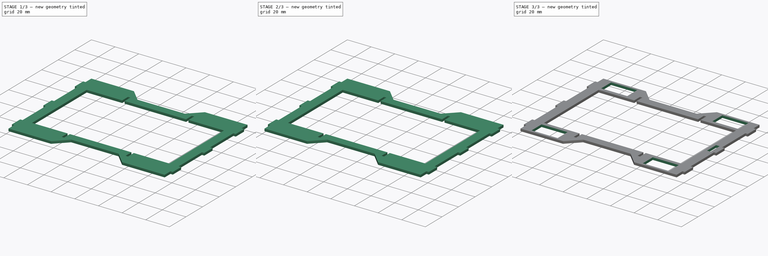
[diagram: build sequence overview — one tinted view per stage of 3, left to right]
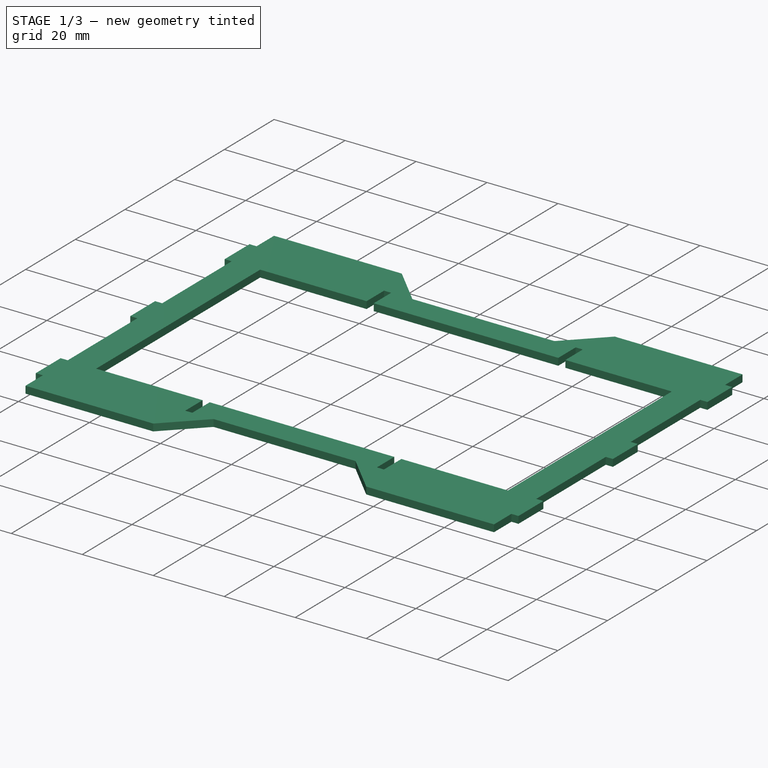
[diagram: stage 1 of 3 — iso view after this stage's code; geometry added in this stage tinted green]
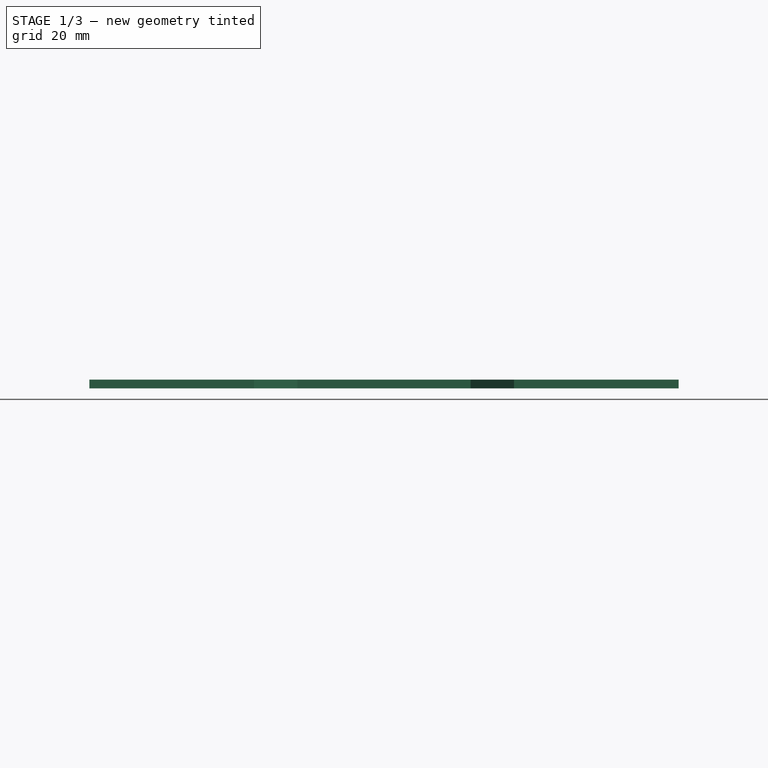
[diagram: stage 1 of 3 — front view after this stage's code; geometry added in this stage tinted green]
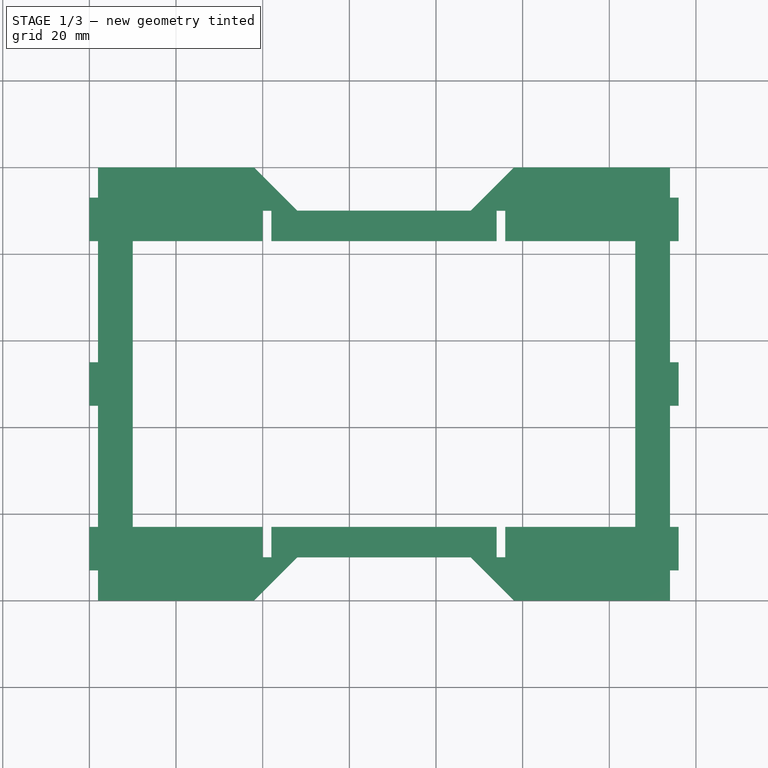
[diagram: stage 1 of 3 — top view after this stage's code; geometry added in this stage tinted green]
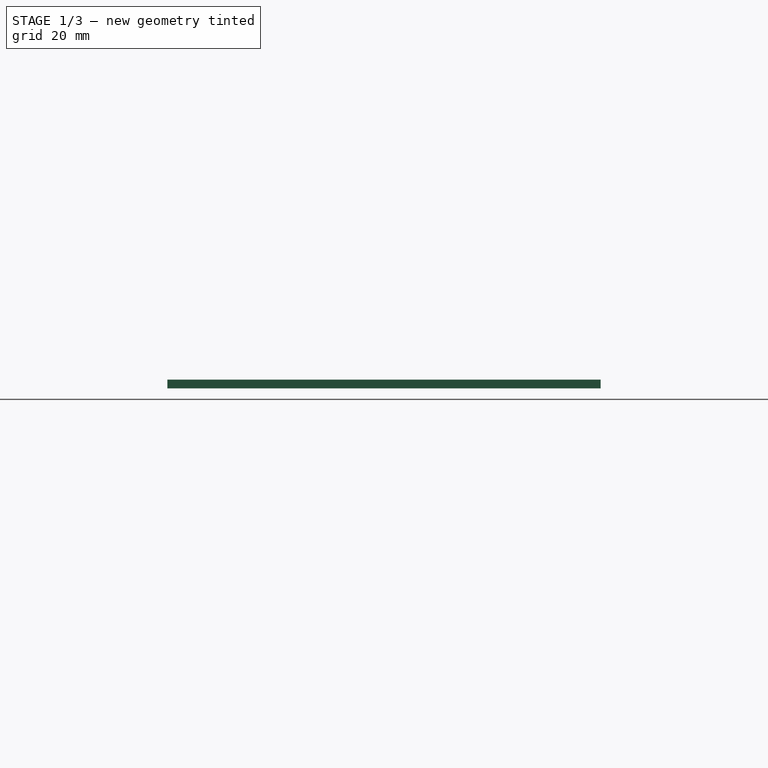
[diagram: stage 1 of 3 — right view after this stage's code; geometry added in this stage tinted green]
FCSTD DOCUMENT  (FreeCAD 0.18R16131 (Git))
Label: passerelle_11
License: All rights reserved
LicenseURL: http://en.wikipedia.org/wiki/All_rights_reserved
objects: Sketcher::SketchObject×4, PartDesign::Pocket×4, PartDesign::Pad×1, PartDesign::Body×1
note: 15 computed .brp shape members not serialized (recipe doc carries the construction recipe); baked Part::Feature solids carry a one-line shape summary decoded from their .brp

FEATURE [Sketcher::SketchObject] Sketch
  MapMode = 5
  Support = -> [XY_Plane]
  sketch-geometry (40):
    g0: LineSegment StartX=2 StartY=100 StartZ=0 EndX=38 EndY=100 EndZ=0
    g1: LineSegment StartX=38 StartY=100 StartZ=0 EndX=48 EndY=90 EndZ=0
    g2: LineSegment StartX=48 StartY=90 StartZ=0 EndX=88 EndY=90 EndZ=0
    g3: LineSegment StartX=88 StartY=90 StartZ=0 EndX=98 EndY=100 EndZ=0
    g4: LineSegment StartX=98 StartY=100 StartZ=0 EndX=134 EndY=100 EndZ=0
    g5: LineSegment StartX=134 StartY=0 StartZ=0 EndX=98 EndY=0 EndZ=0
    g6: LineSegment StartX=98 StartY=0 StartZ=0 EndX=88 EndY=10 EndZ=0
    g7: LineSegment StartX=88 StartY=10 StartZ=0 EndX=48 EndY=10 EndZ=0
    g8: LineSegment StartX=48 StartY=10 StartZ=0 EndX=38 EndY=0 EndZ=0
    g9: LineSegment StartX=38 StartY=0 StartZ=0 EndX=2 EndY=0 EndZ=0
    g10: LineSegment StartX=10 StartY=83 StartZ=0 EndX=126 EndY=83 EndZ=0
    g11: LineSegment StartX=126 StartY=83 StartZ=0 EndX=126 EndY=17 EndZ=0
    g12: LineSegment StartX=126 StartY=17 StartZ=0 EndX=10 EndY=17 EndZ=0
    g13: LineSegment StartX=10 StartY=17 StartZ=0 EndX=10 EndY=83 EndZ=0
    g14: LineSegment StartX=2 StartY=0 StartZ=0 EndX=2 EndY=7 EndZ=0
    g15: LineSegment StartX=2 StartY=7 StartZ=0 EndX=0 EndY=7 EndZ=0
    g16: LineSegment StartX=0 StartY=7 StartZ=0 EndX=0 EndY=17 EndZ=0
    g17: LineSegment StartX=0 StartY=17 StartZ=0 EndX=2 EndY=17 EndZ=0
    g18: LineSegment StartX=2 StartY=17 StartZ=0 EndX=2 EndY=45 EndZ=0
    g19: LineSegment StartX=2 StartY=45 StartZ=0 EndX=0 EndY=45 EndZ=0
    g20: LineSegment StartX=0 StartY=45 StartZ=0 EndX=0 EndY=55 EndZ=0
    g21: LineSegment StartX=0 StartY=55 StartZ=0 EndX=2 EndY=55 EndZ=0
    g22: LineSegment StartX=2 StartY=55 StartZ=0 EndX=2 EndY=83 EndZ=0
    g23: LineSegment StartX=2 StartY=83 StartZ=0 EndX=0 EndY=83 EndZ=0
    g24: LineSegment StartX=0 StartY=83 StartZ=0 EndX=0 EndY=93 EndZ=0
    g25: LineSegment StartX=0 StartY=93 StartZ=0 EndX=2 EndY=93 EndZ=0
    g26: LineSegment StartX=2 StartY=93 StartZ=0 EndX=2 EndY=100 EndZ=0
    g27: LineSegment StartX=134 StartY=93 StartZ=0 EndX=136 EndY=93 EndZ=0
    g28: LineSegment StartX=136 StartY=93 StartZ=0 EndX=136 EndY=83 EndZ=0
    g29: LineSegment StartX=136 StartY=83 StartZ=0 EndX=134 EndY=83 EndZ=0
    g30: LineSegment StartX=134 StartY=83 StartZ=0 EndX=134 EndY=55 EndZ=0
    g31: LineSegment StartX=134 StartY=55 StartZ=0 EndX=136 EndY=55 EndZ=0
    g32: LineSegment StartX=136 StartY=55 StartZ=0 EndX=136 EndY=45 EndZ=0
    g33: LineSegment StartX=136 StartY=45 StartZ=0 EndX=134 EndY=45 EndZ=0
    g34: LineSegment StartX=134 StartY=45 StartZ=0 EndX=134 EndY=17 EndZ=0
    g35: LineSegment StartX=134 StartY=17 StartZ=0 EndX=136 EndY=17 EndZ=0
    g36: LineSegment StartX=136 StartY=17 StartZ=0 EndX=136 EndY=7 EndZ=0
    g37: LineSegment StartX=136 StartY=7 StartZ=0 EndX=134 EndY=7 EndZ=0
    g38: LineSegment StartX=134 StartY=7 StartZ=0 EndX=134 EndY=0 EndZ=0
    g39: LineSegment StartX=134 StartY=100 StartZ=0 EndX=134 EndY=93 EndZ=0
  constraints (120):
    c: Coincident(g0,g1)
    c: Coincident(g1,g2)
    c: Coincident(g2,g3)
    c: Coincident(g3,g4)
    c: Coincident(g5,g6)
    c: Coincident(g6,g7)
    c: Coincident(g7,g8)
    c: Coincident(g8,g9)
    c: Horizontal(g4)
    c: Horizontal(g2)
    c: Horizontal(g7)
    c: Horizontal(g5)
    c: Horizontal(g9)
    c: Horizontal(g0)
    c: PointOnObject(g5,g-1)
    c: Equal(g7,g2)
    c: DistanceX(g9,g5) = 132
    c: DistanceX(g9,g8) = 36
    c: DistanceX(g9,g7) = 46
    c: Equal(g4,g5)
    c: Equal(g5,g9)
    c: Equal(g9,g0)
    c: Coincident(g10,g11)
    c: Coincident(g11,g12)
    c: Coincident(g12,g13)
    c: Coincident(g13,g10)
    c: Horizontal(g10)
    c: Horizontal(g12)
    c: Vertical(g11)
    c: Vertical(g13)
    c: DistanceX(g12,g12) = 116
    c: DistanceY(g11,g11) = 66
    c: DistanceX(g9,g12) = 8
    c: DistanceY(g9,g12) = 17
    c: Coincident(g14,g15)
    c: Coincident(g15,g16)
    c: Coincident(g16,g17)
    c: Coincident(g17,g18)
    c: Coincident(g18,g19)
    c: Coincident(g19,g20)
    c: Coincident(g20,g21)
    c: Coincident(g21,g22)
    c: Coincident(g22,g23)
    c: Coincident(g23,g24)
    c: Coincident(g24,g25)
    c: Coincident(g25,g26)
    c: Coincident(g27,g28)
    c: Coincident(g28,g29)
    c: Coincident(g29,g30)
    c: Coincident(g30,g31)
    c: Coincident(g31,g32)
    c: Coincident(g32,g33)
    c: Coincident(g33,g34)
    c: Coincident(g34,g35)
    c: Coincident(g35,g36)
    c: Coincident(g36,g37)
    c: Coincident(g37,g38)
    c: Coincident(g38,g5)
    c: Coincident(g0,g26)
    c: Coincident(g9,g14)
    c: Vertical(g14)
    c: Vertical(g18)
    c: Vertical(g22)
    c: Vertical(g26)
    c: Vertical(g24)
    c: Vertical(g20)
    c: Vertical(g16)
    c: Horizontal(g23)
    c: Horizontal(g25)
    c: Horizontal(g21)
    c: Horizontal(g19)
    c: Horizontal(g17)
    c: Horizontal(g15)
    c: Horizontal(g27)
    c: Horizontal(g29)
    c: Horizontal(g31)
    c: Horizontal(g33)
    c: Horizontal(g35)
    c: Horizontal(g37)
    c: Vertical(g38)
    c: Vertical(g36)
    c: Vertical(g32)
    c: Vertical(g30)
    c: Vertical(g28)
    c: Vertical(g34)
    c: Equal(g27,g29)
    c: Equal(g29,g31)
    c: Equal(g31,g33)
    c: Equal(g33,g35)
    c: Equal(g35,g37)
    c: Equal(g37,g15)
    c: Equal(g15,g17)
    c: Equal(g17,g19)
    c: Equal(g19,g21)
    c: Equal(g21,g23)
    c: Equal(g23,g25)
    c: DistanceX(g15,g14) = 2
    c: Equal(g16,g20)
    c: Equal(g20,g24)
    c: Equal(g24,g28)
    c: Equal(g28,g32)
    c: Equal(g32,g36)
    c: DistanceY(g19,g20) = 10
    c: Equal(g22,g18)
    c: Equal(g34,g30)
    c: DistanceY(g22,g22) = 28
    c: Equal(g14,g38)
    c: DistanceY(g38,g38) = 7
    c: Equal(g39,g26)
    c: Equal(g14,g26)
    c: Coincident(g39,g27)
    c: Coincident(g39,g4)
    c: Vertical(g39)
    c: PointOnObject(g15,g-2)
    c: PointOnObject(g9,g-1)
    c: Equal(g1,g3)
    c: Equal(g3,g6)
    c: Equal(g6,g8)
    c: Horizontal(g3,g0)
    c: DistanceY(g8,g7) = 10
FEATURE [PartDesign::Pad] Pad
  Length = 2
  Length2 = 100
  Offset = 2
  Profile = -> Sketch
  Type = 0
FEATURE [Sketcher::SketchObject] CopySketch002  label="sketch_support"
  MapMode = 5
  Support = -> [XY_Plane]
  sketch-geometry (16):
    g0: LineSegment StartX=40 StartY=17 StartZ=0 EndX=42 EndY=17 EndZ=0
    g1: LineSegment StartX=42 StartY=17 StartZ=0 EndX=42 EndY=10 EndZ=0
    g2: LineSegment StartX=42 StartY=10 StartZ=0 EndX=40 EndY=10 EndZ=0
    g3: LineSegment StartX=40 StartY=10 StartZ=0 EndX=40 EndY=17 EndZ=0
    g4: LineSegment StartX=96 StartY=17 StartZ=0 EndX=96 EndY=10 EndZ=0
    g5: LineSegment StartX=96 StartY=10 StartZ=0 EndX=94 EndY=10 EndZ=0
    g6: LineSegment StartX=94 StartY=10 StartZ=0 EndX=94 EndY=17 EndZ=0
    g7: LineSegment StartX=42 StartY=90 StartZ=0 EndX=40 EndY=90 EndZ=0
    g8: LineSegment StartX=40 StartY=90 StartZ=0 EndX=40 EndY=83 EndZ=0
    g9: LineSegment StartX=40 StartY=83 StartZ=0 EndX=42 EndY=83 EndZ=0
    g10: LineSegment StartX=42 StartY=83 StartZ=0 EndX=42 EndY=90 EndZ=0
    g11: LineSegment StartX=96 StartY=90 StartZ=0 EndX=96 EndY=83 EndZ=0
    g12: LineSegment StartX=96 StartY=83 StartZ=0 EndX=94 EndY=83 EndZ=0
    g13: LineSegment StartX=94 StartY=90 StartZ=0 EndX=96 EndY=90 EndZ=0
    g14: LineSegment StartX=94 StartY=83 StartZ=0 EndX=94 EndY=90 EndZ=0
    g15: LineSegment StartX=94 StartY=17 StartZ=0 EndX=96 EndY=17 EndZ=0
  constraints (48):
    c: Coincident(g0,g1)
    c: Coincident(g1,g2)
    c: Coincident(g2,g3)
    c: Coincident(g3,g0)
    c: Horizontal(g0)
    c: Horizontal(g2)
    c: Vertical(g1)
    c: Vertical(g3)
    c: DistanceX(g0,g0) = 2
    c: DistanceY(g1,g0) = 7
    c: DistanceX(g-1,g2) = 40
    c: DistanceY(g-1,g2) = 10
    c: Coincident(g4,g5)
    c: Coincident(g5,g6)
    c: Horizontal(g5)
    c: Vertical(g4)
    c: Vertical(g6)
    c: DistanceY(g4,g4) = 7
    c: Coincident(g7,g8)
    c: Coincident(g8,g9)
    c: Coincident(g9,g10)
    c: Coincident(g10,g7)
    c: Horizontal(g7)
    c: Horizontal(g9)
    c: Vertical(g8)
    c: Vertical(g10)
    c: Equal(g0,g7) = 2
    c: DistanceY(g8,g7) = 7
    c: Coincident(g13,g11)
    c: Coincident(g11,g12)
    c: Coincident(g12,g14)
    c: Coincident(g14,g13)
    c: Horizontal(g13)
    c: Horizontal(g12)
    c: Vertical(g11)
    c: Vertical(g14)
    c: Equal(g0,g13) = 2
    c: DistanceY(g11,g13) = 7
    c: DistanceX(g1,g5) = 52
    c: DistanceY(g0,g8) = 66
    c: Horizontal(g12,g8)
    c: Vertical(g8,g2)
    c: Vertical(g5,g12)
    c: Horizontal(g4,g2)
    c: Horizontal(g6,g0)
    c: Coincident(g15,g6)
    c: Coincident(g15,g4)
    c: Equal(g15,g0)
FEATURE [PartDesign::Pocket] Pocket001  label="Pocket_support"
  BaseFeature = -> Pad
  Length = 5
  Length2 = 100
  Profile = -> CopySketch002
  Reversed = true
  Type = 1
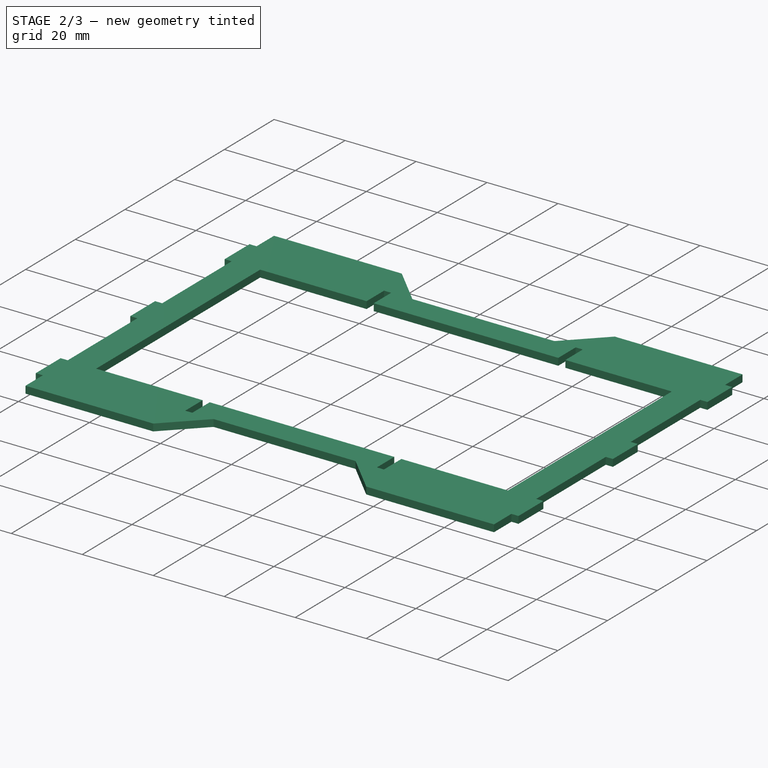
[diagram: stage 2 of 3 — iso view after this stage's code; geometry added in this stage tinted green]
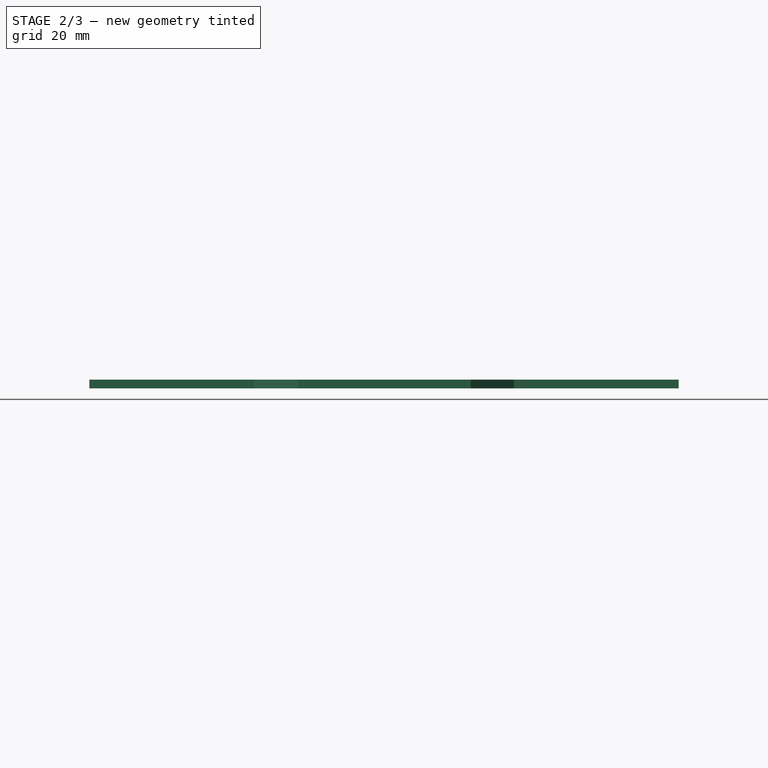
[diagram: stage 2 of 3 — front view after this stage's code; geometry added in this stage tinted green]
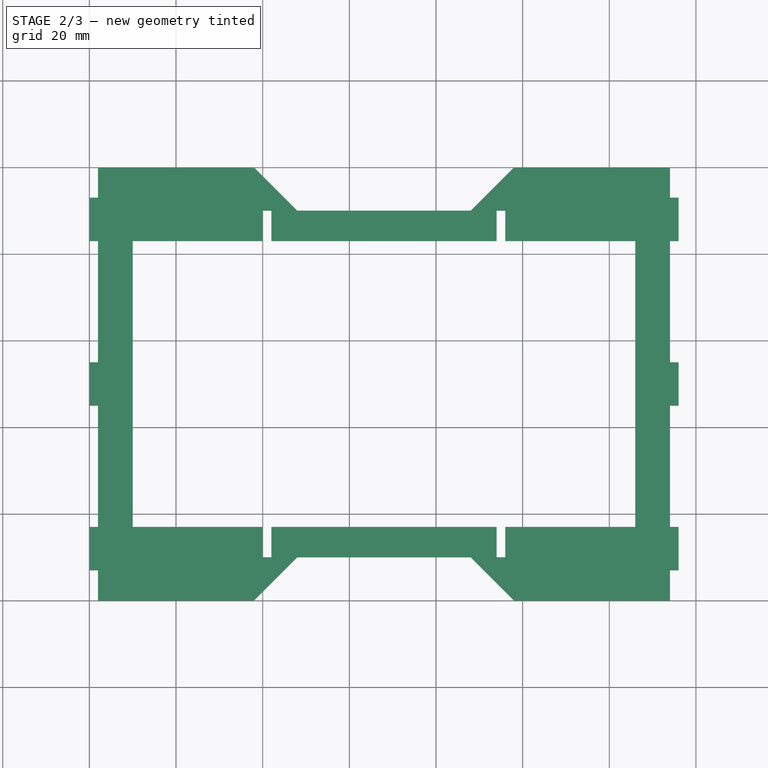
[diagram: stage 2 of 3 — top view after this stage's code; geometry added in this stage tinted green]
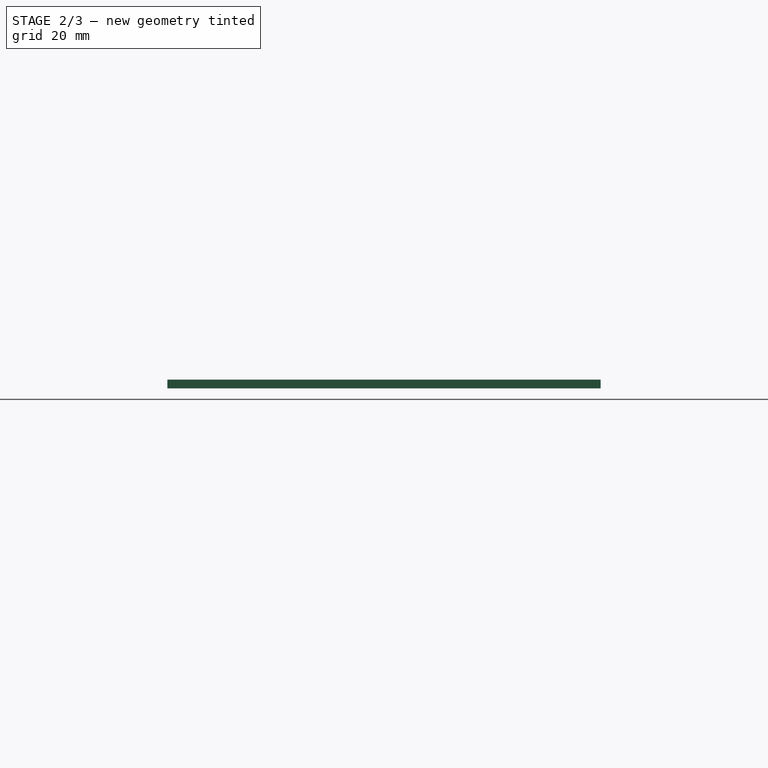
[diagram: stage 2 of 3 — right view after this stage's code; geometry added in this stage tinted green]
FEATURE [Sketcher::SketchObject] Sketch001
  MapMode = 5
  Support = -> [XY_Plane]
  sketch-geometry (16):
    g0: LineSegment StartX=10 StartY=98 StartZ=0 EndX=32 EndY=98 EndZ=0
    g1: LineSegment StartX=32 StartY=98 StartZ=0 EndX=32 EndY=86 EndZ=0
    g2: LineSegment StartX=32 StartY=86 StartZ=0 EndX=10 EndY=86 EndZ=0
    g3: LineSegment StartX=10 StartY=86 StartZ=0 EndX=10 EndY=98 EndZ=0
    g4: LineSegment StartX=104 StartY=98 StartZ=0 EndX=126 EndY=98 EndZ=0
    g5: LineSegment StartX=126 StartY=98 StartZ=0 EndX=126 EndY=86 EndZ=0
    g6: LineSegment StartX=126 StartY=86 StartZ=0 EndX=104 EndY=86 EndZ=0
    g7: LineSegment StartX=104 StartY=86 StartZ=0 EndX=104 EndY=98 EndZ=0
    g8: LineSegment StartX=10 StartY=14 StartZ=0 EndX=32 EndY=14 EndZ=0
    g9: LineSegment StartX=32 StartY=14 StartZ=0 EndX=32 EndY=2 EndZ=0
    g10: LineSegment StartX=32 StartY=2 StartZ=0 EndX=10 EndY=2 EndZ=0
    g11: LineSegment StartX=10 StartY=2 StartZ=0 EndX=10 EndY=14 EndZ=0
    g12: LineSegment StartX=104 StartY=14 StartZ=0 EndX=126 EndY=14 EndZ=0
    g13: LineSegment StartX=126 StartY=14 StartZ=0 EndX=126 EndY=2 EndZ=0
    g14: LineSegment StartX=126 StartY=2 StartZ=0 EndX=104 EndY=2 EndZ=0
    g15: LineSegment StartX=104 StartY=2 StartZ=0 EndX=104 EndY=14 EndZ=0
  constraints (48):
    c: Coincident(g0,g1)
    c: Coincident(g1,g2)
    c: Coincident(g2,g3)
    c: Coincident(g3,g0)
    c: Horizontal(g0)
    c: Horizontal(g2)
    c: Vertical(g1)
    c: Vertical(g3)
    c: DistanceX(g0,g0) = 22
    c: DistanceY(g1,g1) = 12
    c: DistanceX(g-1,g2) = 10
    c: DistanceY(g-1,g2) = 86
    c: Coincident(g4,g5)
    c: Coincident(g5,g6)
    c: Coincident(g6,g7)
    c: Coincident(g7,g4)
    c: Horizontal(g4)
    c: Horizontal(g6)
    c: Vertical(g5)
    c: Vertical(g7)
    c: Equal(g0,g4) = 22
    c: Equal(g1,g5) = 12
    c: Coincident(g8,g9)
    c: Coincident(g9,g10)
    c: Coincident(g10,g11)
    c: Coincident(g11,g8)
    c: Horizontal(g8)
    c: Horizontal(g10)
    c: Vertical(g9)
    c: Vertical(g11)
    c: Equal(g0,g8) = 22
    c: Equal(g1,g9) = 12
    c: Coincident(g12,g13)
    c: Coincident(g13,g14)
    c: Coincident(g14,g15)
    c: Coincident(g15,g12)
    c: Horizontal(g12)
    c: Horizontal(g14)
    c: Vertical(g13)
    c: Vertical(g15)
    c: Equal(g0,g12) = 22
    c: Equal(g1,g13) = 12
    c: DistanceX(g1,g6) = 72
    c: DistanceY(g8,g2) = 72
    c: Vertical(g8,g2)
    c: Horizontal(g1,g6)
    c: Vertical(g6,g12)
    c: Horizontal(g8,g12)
FEATURE [PartDesign::Pocket] Pocket
  BaseFeature = -> Pocket001
  Length = 5
  Length2 = 100
  Profile = -> Sketch001
  Type = 0
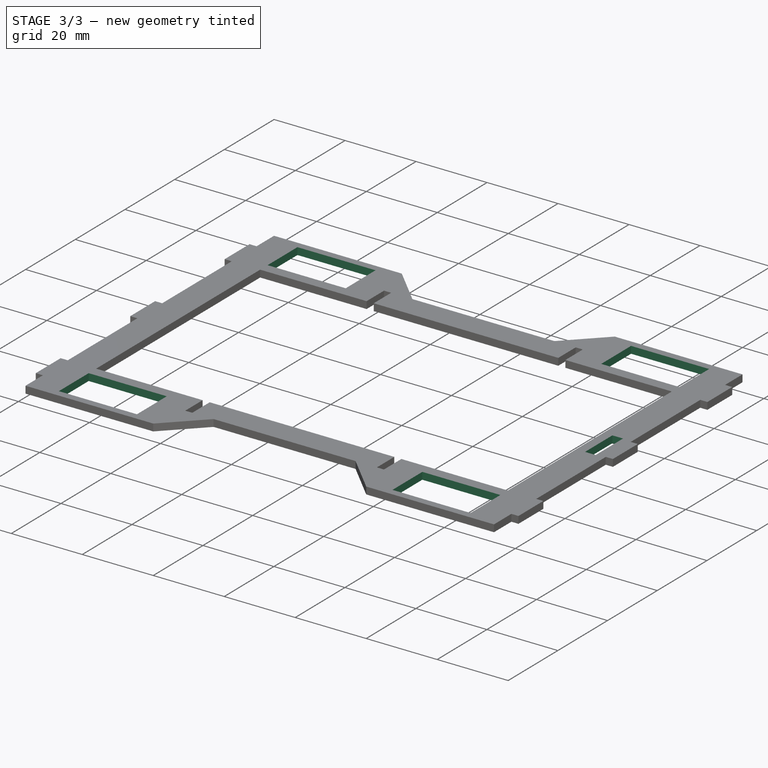
[diagram: stage 3 of 3 — iso view after this stage's code; geometry added in this stage tinted green]
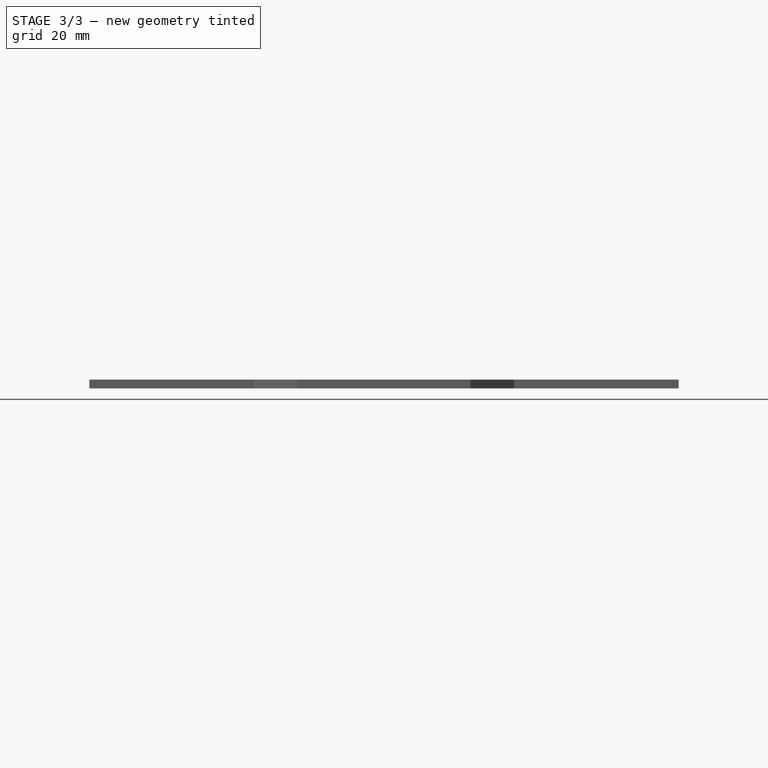
[diagram: stage 3 of 3 — front view after this stage's code; geometry added in this stage tinted green]
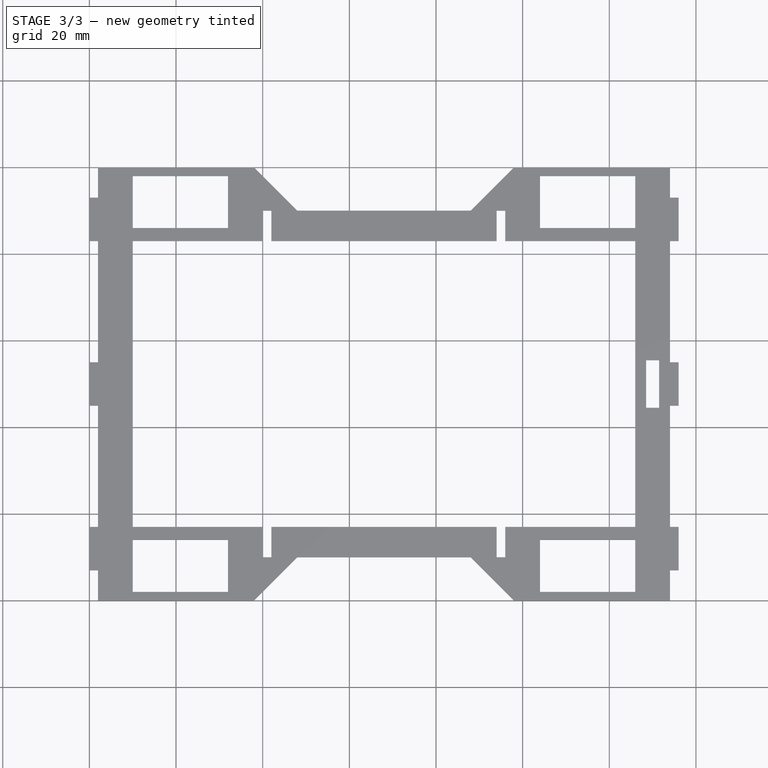
[diagram: stage 3 of 3 — top view after this stage's code; geometry added in this stage tinted green]
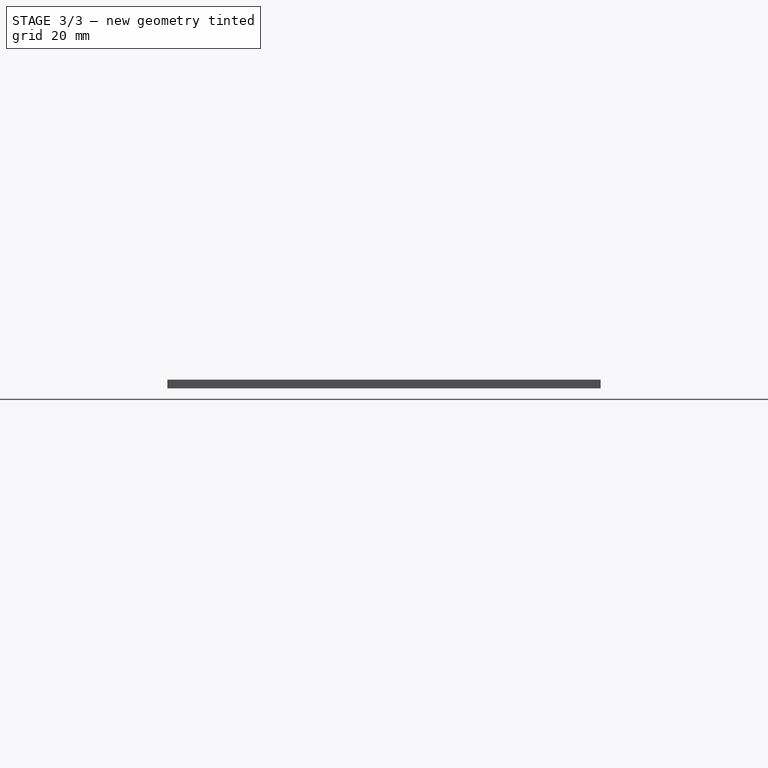
[diagram: stage 3 of 3 — right view after this stage's code; geometry added in this stage tinted green]
FEATURE [PartDesign::Pocket] Pocket002
  BaseFeature = -> Pocket
  Length = 3
  Length2 = 100
  Midplane = true
  Profile = -> Sketch001
  Type = 1
FEATURE [Sketcher::SketchObject] Sketch002
  MapMode = 5
  Support = -> [XY_Plane]
  sketch-geometry (4):
    g0: LineSegment StartX=128.5 StartY=55.5 StartZ=0 EndX=131.5 EndY=55.5 EndZ=0
    g1: LineSegment StartX=131.5 StartY=55.5 StartZ=0 EndX=131.5 EndY=44.5 EndZ=0
    g2: LineSegment StartX=131.5 StartY=44.5 StartZ=0 EndX=128.5 EndY=44.5 EndZ=0
    g3: LineSegment StartX=128.5 StartY=44.5 StartZ=0 EndX=128.5 EndY=55.5 EndZ=0
  constraints (12):
    c: Coincident(g0,g1)
    c: Coincident(g1,g2)
    c: Coincident(g2,g3)
    c: Coincident(g3,g0)
    c: Horizontal(g0)
    c: Horizontal(g2)
    c: Vertical(g1)
    c: Vertical(g3)
    c: DistanceY(g1,g1) = 11
    c: DistanceX(g0,g0) = 3
    c: DistanceY(g-1,g2) = 44.5
    c: DistanceX(g-1,g2) = 128.5
FEATURE [PartDesign::Pocket] Pocket003
  BaseFeature = -> Pocket002
  Length = 5
  Length2 = 100
  Profile = -> Sketch002
  Reversed = true
  Type = 1
FEATURE [PartDesign::Body] Body  label="Base"
  Group = -> [Sketch,Pad,CopySketch002,Pocket001,Sketch001,Pocket,Pocket002,Sketch002,Pocket003]
  Origin = -> Origin
  Tip = -> Pocket003
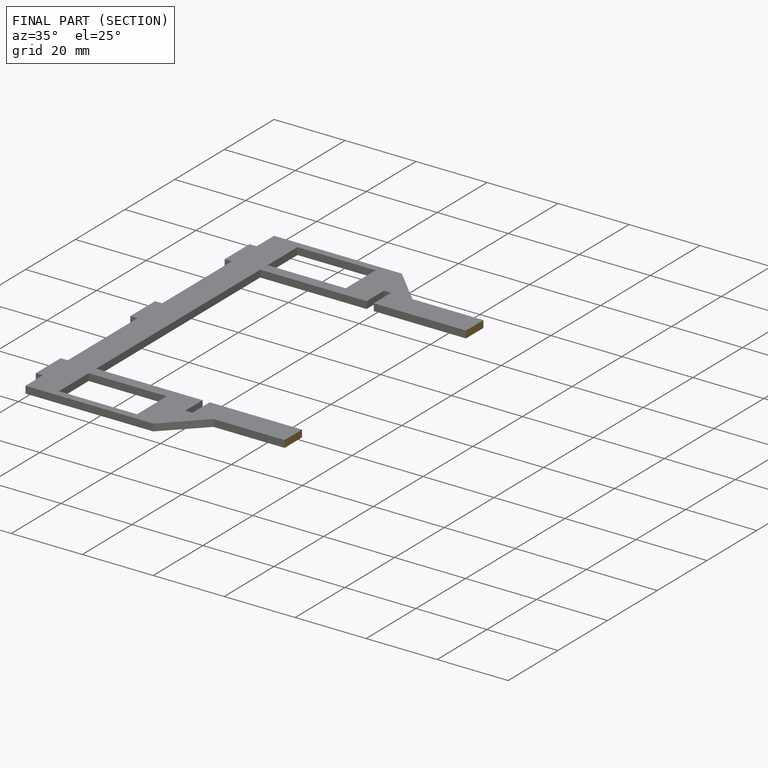
[diagram: finished part — half-section view (interior)]
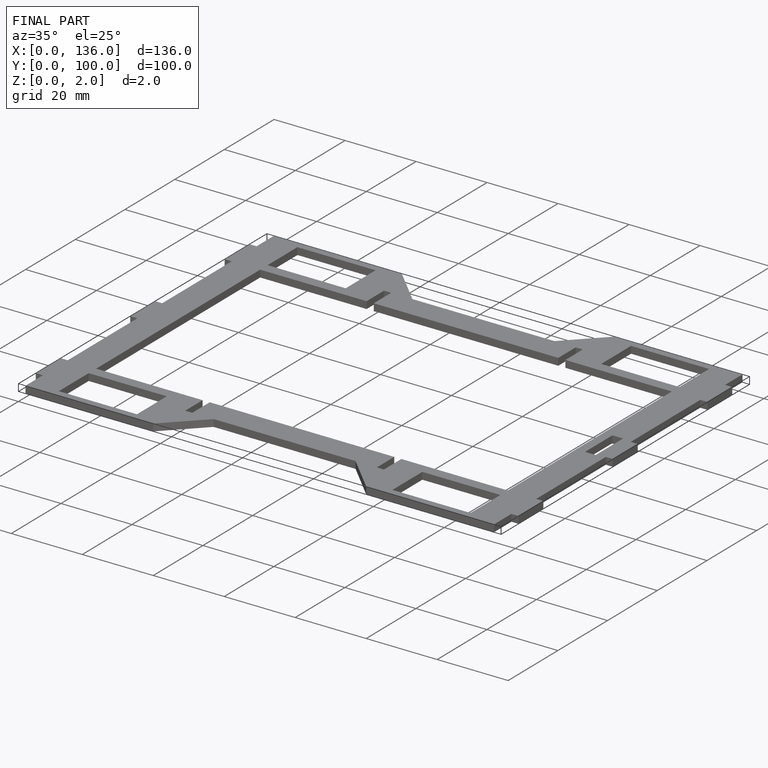
[diagram: finished part — iso view with bounding-box wireframe]
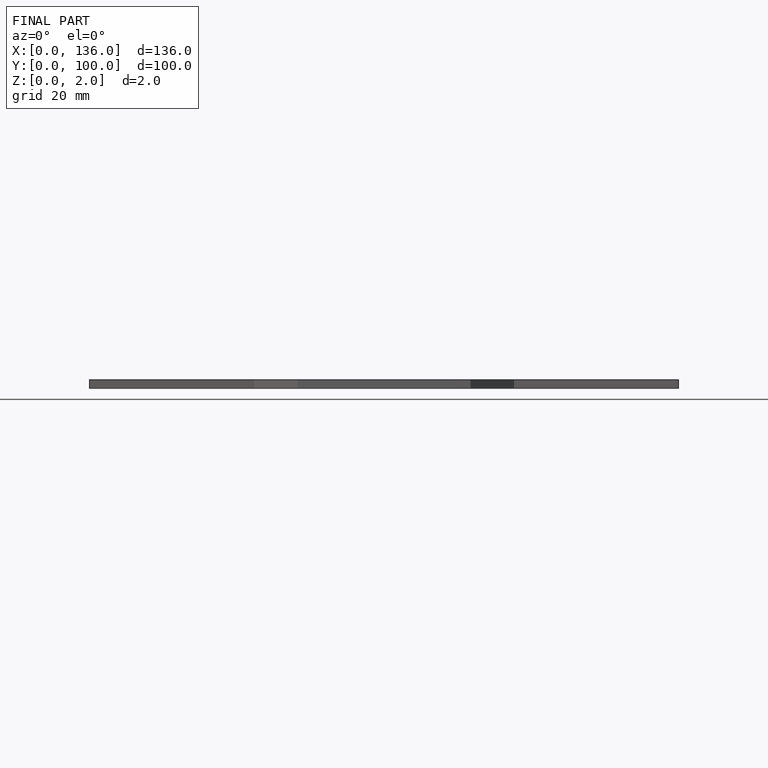
[diagram: finished part — front view with bounding-box wireframe]
